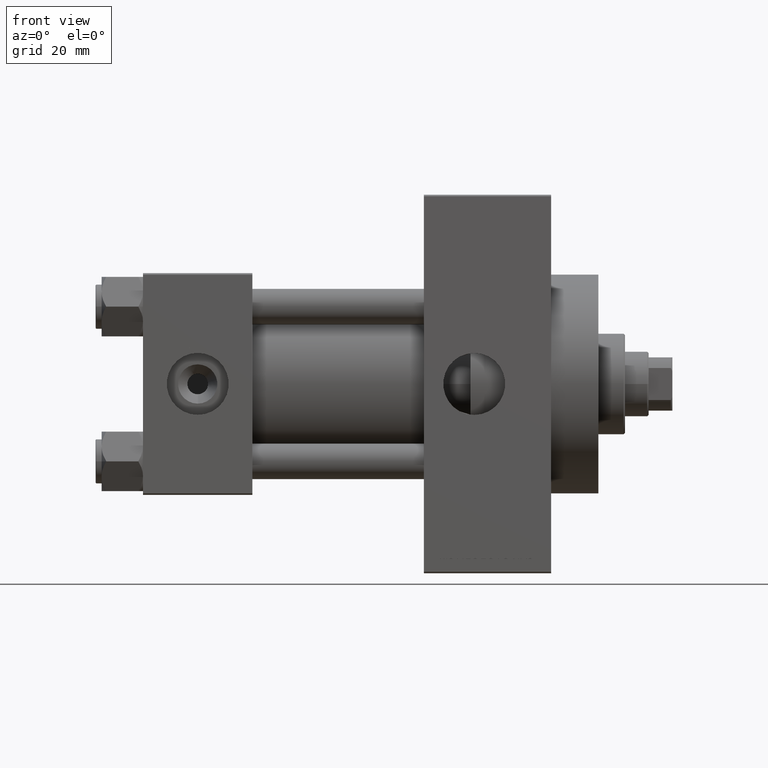
[diagram: clean part render]
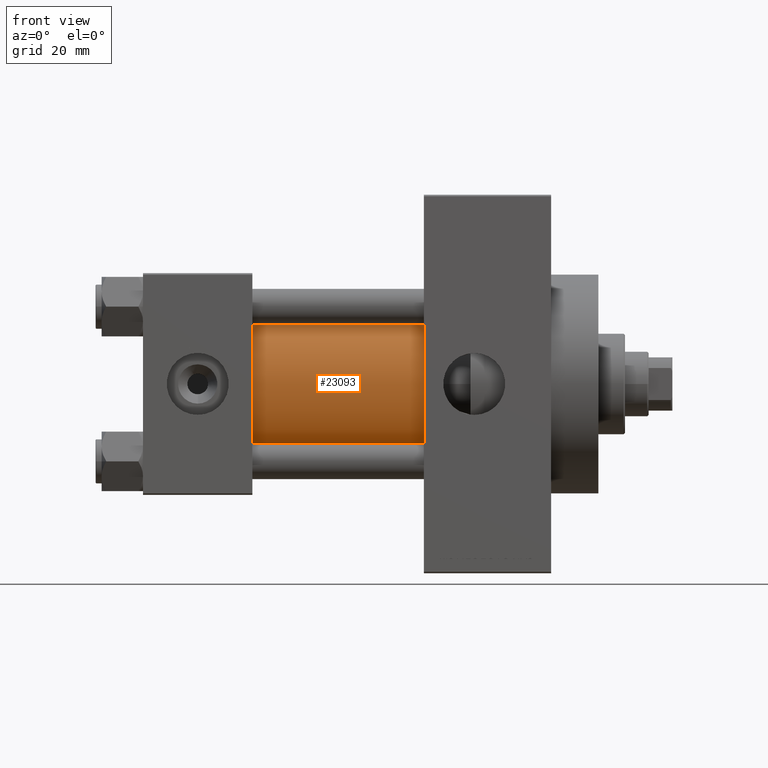
[diagram: same view with one face highlighted and labeled with its STEP entity id]
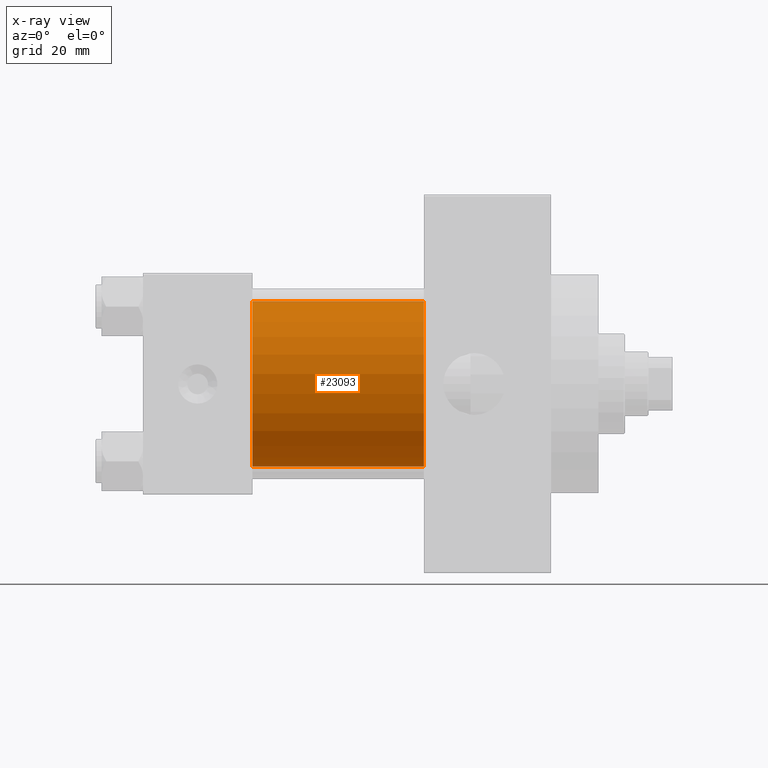
[diagram: x-ray of the same camera — body ghosted, the highlighted face saturated]
A machine part, front view. The second image highlights one B-rep face of the part: STEP entity #23093.
The next image is the same camera in x-ray: the body ghosted, the highlighted face saturated — about 2% of this face is hidden behind the body in this view.
In plain terms, the highlighted cylindrical surface (partial cylindrical patch) has radius 28 mm, axis along (-1, -0, -0).
Its self-contained STEP definition (entity closure, byte-faithful):
#401 = CARTESIAN_POINT ( 'NONE',  ( 37.00000000000000000, -2.602085213965210642E-15, 0.000000000000000000 ) ) ;
#3452 = CARTESIAN_POINT ( 'NONE',  ( 95.00000000000000000, -2.602085213965210642E-15, 28.00000000000000000 ) ) ;
#3888 = DIRECTION ( 'NONE',  ( 1.000000000000000000, -0.000000000000000000, 0.000000000000000000 ) ) ;
#6008 = DIRECTION ( 'NONE',  ( 1.000000000000000000, 0.000000000000000000, 0.000000000000000000 ) ) ;
#6069 = CARTESIAN_POINT ( 'NONE',  ( 37.00000000000000000, -2.602085213965210642E-15, 28.00000000000000000 ) ) ;
#9724 = EDGE_LOOP ( 'NONE', ( #24555, #47030, #29344, #39955 ) ) ;
#10866 = EDGE_CURVE ( 'NONE', #39132, #40338, #25040, .T. ) ;
#11138 = LINE ( 'NONE', #38026, #14965 ) ;
#14965 = VECTOR ( 'NONE', #38513, 1000.000000000000000 ) ;
#17161 = VERTEX_POINT ( 'NONE', #3452 ) ;
#17469 = CARTESIAN_POINT ( 'NONE',  ( 95.00000000000000000, -2.602085213965210642E-15, 0.000000000000000000 ) ) ;
#20063 = DIRECTION ( 'NONE',  ( 0.000000000000000000, 0.000000000000000000, 1.000000000000000000 ) ) ;
#20956 = DIRECTION ( 'NONE',  ( 0.000000000000000000, 0.000000000000000000, -1.000000000000000000 ) ) ;
#22077 = CARTESIAN_POINT ( 'NONE',  ( 95.00000000000000000, 8.269258236473776482E-16, -28.00000000000000000 ) ) ;
#23093 = ADVANCED_FACE ( 'NONE', ( #23564 ), #30813, .T. ) ;
#23564 = FACE_OUTER_BOUND ( 'NONE', #9724, .T. ) ;
#24555 = ORIENTED_EDGE ( 'NONE', *, *, #42734, .F. ) ;
#25040 = CIRCLE ( 'NONE', #40139, 28.00000000000000000 ) ;
#25412 = AXIS2_PLACEMENT_3D ( 'NONE', #17469, #6008, #20956 ) ;
#26274 = CARTESIAN_POINT ( 'NONE',  ( 37.00000000000000000, 8.269258236473776482E-16, -28.00000000000000000 ) ) ;
#27303 = DIRECTION ( 'NONE',  ( 0.000000000000000000, 0.000000000000000000, 1.000000000000000000 ) ) ;
#29344 = ORIENTED_EDGE ( 'NONE', *, *, #39965, .T. ) ;
#30813 = CYLINDRICAL_SURFACE ( 'NONE', #46070, 28.00000000000000000 ) ;
#33499 = VERTEX_POINT ( 'NONE', #34392 ) ;
#34392 = CARTESIAN_POINT ( 'NONE',  ( 95.00000000000000000, 8.269258236473776482E-16, -28.00000000000000000 ) ) ;
#35715 = CIRCLE ( 'NONE', #25412, 28.00000000000000000 ) ;
#38026 = CARTESIAN_POINT ( 'NONE',  ( 95.00000000000000000, -2.602085213965210642E-15, 28.00000000000000000 ) ) ;
#38513 = DIRECTION ( 'NONE',  ( -1.000000000000000000, -0.000000000000000000, -0.000000000000000000 ) ) ;
#38754 = DIRECTION ( 'NONE',  ( -1.000000000000000000, -0.000000000000000000, -0.000000000000000000 ) ) ;
#39132 = VERTEX_POINT ( 'NONE', #6069 ) ;
#39955 = ORIENTED_EDGE ( 'NONE', *, *, #10866, .T. ) ;
#39965 = EDGE_CURVE ( 'NONE', #17161, #39132, #11138, .T. ) ;
#40139 = AXIS2_PLACEMENT_3D ( 'NONE', #401, #3888, #27303 ) ;
#40338 = VERTEX_POINT ( 'NONE', #26274 ) ;
#42311 = EDGE_CURVE ( 'NONE', #17161, #33499, #35715, .T. ) ;
#42734 = EDGE_CURVE ( 'NONE', #33499, #40338, #44251, .T. ) ;
#44251 = LINE ( 'NONE', #22077, #44507 ) ;
#44507 = VECTOR ( 'NONE', #45261, 1000.000000000000000 ) ;
#45261 = DIRECTION ( 'NONE',  ( -1.000000000000000000, -0.000000000000000000, -0.000000000000000000 ) ) ;
#46070 = AXIS2_PLACEMENT_3D ( 'NONE', #46728, #38754, #20063 ) ;
#46728 = CARTESIAN_POINT ( 'NONE',  ( 95.00000000000000000, -2.602085213965210642E-15, 0.000000000000000000 ) ) ;
#47030 = ORIENTED_EDGE ( 'NONE', *, *, #42311, .F. ) ;